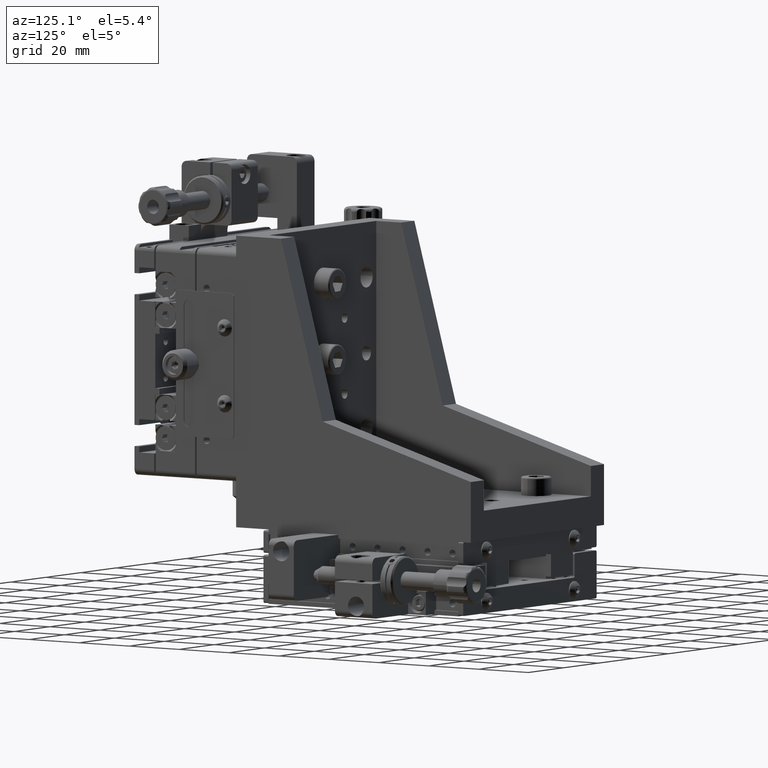
[diagram: clean part render]
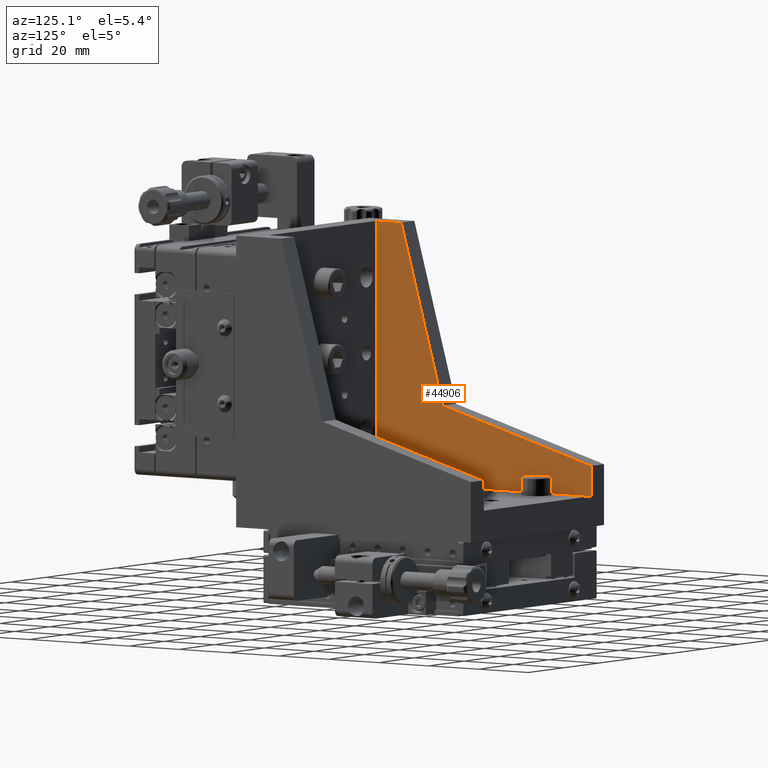
[diagram: same view with one face highlighted and labeled with its STEP entity id]
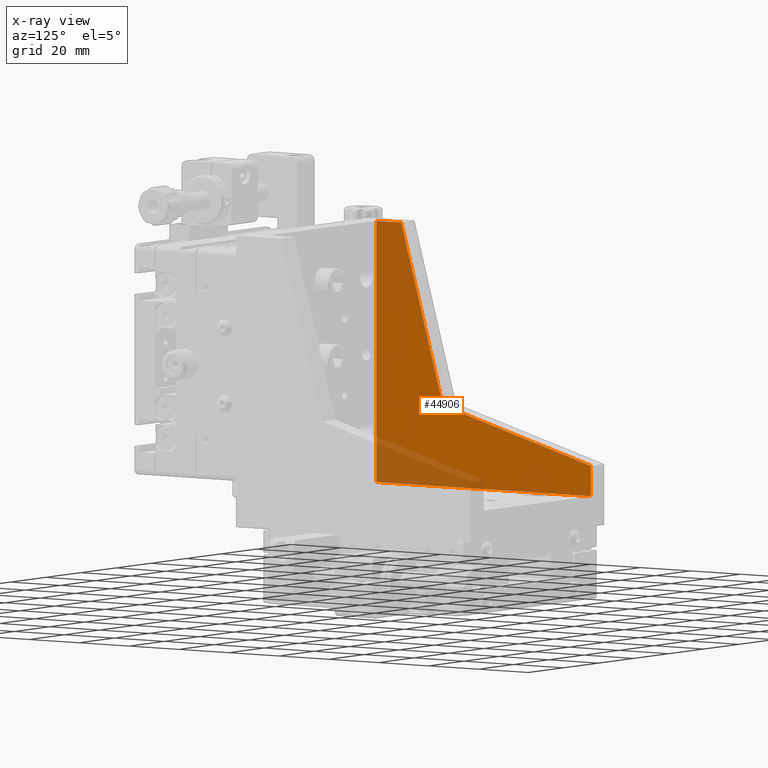
[diagram: x-ray of the same camera — body ghosted, the highlighted face saturated]
A machine part, auxiliary view. The second image highlights one B-rep face of the part: STEP entity #44906.
The next image is the same camera in x-ray: the body ghosted, the highlighted face saturated — about 13% of this face is hidden behind the body in this view.
In plain terms, the highlighted planar face has unit normal (-1, -0, -0).
Its self-contained STEP definition (entity closure, byte-faithful):
#2727 = CARTESIAN_POINT ( 'NONE',  ( -23.88252653792330100, 59.79002752014504600, 176.2309604384503800 ) ) ;
#2950 = EDGE_CURVE ( 'NONE', #106067, #22376, #31684, .T. ) ;
#3089 = EDGE_CURVE ( 'NONE', #106350, #130163, #126029, .T. ) ;
#3470 = EDGE_CURVE ( 'NONE', #3531, #106350, #105493, .T. ) ;
#3531 = VERTEX_POINT ( 'NONE', #72652 ) ;
#3915 = VERTEX_POINT ( 'NONE', #2727 ) ;
#10764 = CARTESIAN_POINT ( 'NONE',  ( -23.88252653792335100, 49.79002752014495300, 90.23096043845028200 ) ) ;
#14644 = CARTESIAN_POINT ( 'NONE',  ( -23.88252653792335100, 49.79002752014506700, 176.2309604384503800 ) ) ;
#19660 = CARTESIAN_POINT ( 'NONE',  ( -23.88252653792330100, 59.79002752014504600, 176.2309604384503800 ) ) ;
#20765 = CARTESIAN_POINT ( 'NONE',  ( -23.88252653792335100, 49.79002752014495300, 90.23096043845028200 ) ) ;
#22376 = VERTEX_POINT ( 'NONE', #14644 ) ;
#25638 = ORIENTED_EDGE ( 'NONE', *, *, #81914, .F. ) ;
#26937 = VECTOR ( 'NONE', #69877, 1000.000000000000000 ) ;
#28538 = EDGE_LOOP ( 'NONE', ( #95313, #34478, #85253, #25638, #110580, #127582 ) ) ;
#30985 = CARTESIAN_POINT ( 'NONE',  ( -23.88252653792335100, 49.79002752014495300, 90.23096043845028200 ) ) ;
#31684 = LINE ( 'NONE', #10764, #26937 ) ;
#32113 = CARTESIAN_POINT ( 'NONE',  ( -23.88252653792330100, 135.7900275201449700, 90.23096043845029600 ) ) ;
#34478 = ORIENTED_EDGE ( 'NONE', *, *, #3089, .F. ) ;
#38892 = DIRECTION ( 'NONE',  ( -7.252141503904997400E-023, 1.000000000000000000, 1.122997703802537200E-016 ) ) ;
#39473 = LINE ( 'NONE', #45277, #99309 ) ;
#44906 = ADVANCED_FACE ( 'NONE', ( #66110 ), #48772, .F. ) ;
#45277 = CARTESIAN_POINT ( 'NONE',  ( -23.88252653792330100, 135.7900275201449700, 90.23096043845029600 ) ) ;
#48772 = PLANE ( 'NONE',  #129710 ) ;
#55936 = CARTESIAN_POINT ( 'NONE',  ( -23.88252653792329400, 135.7900275201449700, 100.2309604384504100 ) ) ;
#57227 = LINE ( 'NONE', #19660, #117043 ) ;
#66110 = FACE_OUTER_BOUND ( 'NONE', #28538, .T. ) ;
#69877 = DIRECTION ( 'NONE',  ( -3.210967867576007900E-018, -1.122997703615274700E-016, 1.000000000000000000 ) ) ;
#72652 = CARTESIAN_POINT ( 'NONE',  ( -23.88252653792330100, 76.46542206237899100, 116.9063549806843100 ) ) ;
#77141 = VECTOR ( 'NONE', #112573, 1000.000000000000000 ) ;
#78671 = VECTOR ( 'NONE', #129936, 1000.000000000000000 ) ;
#78865 = CARTESIAN_POINT ( 'NONE',  ( -23.88252653792330100, 135.7900275201449700, 90.23096043845029600 ) ) ;
#81914 = EDGE_CURVE ( 'NONE', #3915, #3531, #123363, .T. ) ;
#83147 = CARTESIAN_POINT ( 'NONE',  ( -23.88252653792330100, 76.46542206237899100, 116.9063549806843100 ) ) ;
#83374 = EDGE_CURVE ( 'NONE', #22376, #3915, #57227, .T. ) ;
#85253 = ORIENTED_EDGE ( 'NONE', *, *, #3470, .F. ) ;
#95313 = ORIENTED_EDGE ( 'NONE', *, *, #96089, .F. ) ;
#96089 = EDGE_CURVE ( 'NONE', #130163, #106067, #39473, .T. ) ;
#99309 = VECTOR ( 'NONE', #114780, 1000.000000000000000 ) ;
#99775 = VECTOR ( 'NONE', #124049, 1000.000000000000100 ) ;
#100067 = CARTESIAN_POINT ( 'NONE',  ( -23.88252653792329400, 135.7900275201449700, 100.2309604384504100 ) ) ;
#105493 = LINE ( 'NONE', #100067, #78671 ) ;
#106067 = VERTEX_POINT ( 'NONE', #30985 ) ;
#106350 = VERTEX_POINT ( 'NONE', #55936 ) ;
#109911 = DIRECTION ( 'NONE',  ( -3.210967867576008200E-018, -1.122997703615274700E-016, 1.000000000000000000 ) ) ;
#110580 = ORIENTED_EDGE ( 'NONE', *, *, #83374, .F. ) ;
#112573 = DIRECTION ( 'NONE',  ( 3.210967867576007900E-018, 1.122997703615274700E-016, -1.000000000000000000 ) ) ;
#114780 = DIRECTION ( 'NONE',  ( 7.252141503904997400E-023, -1.000000000000000000, -1.122997703802537200E-016 ) ) ;
#117043 = VECTOR ( 'NONE', #38892, 1000.000000000000000 ) ;
#123363 = LINE ( 'NONE', #83147, #99775 ) ;
#124049 = DIRECTION ( 'NONE',  ( 3.091152639828836600E-018, 0.2706004459758642500, -0.9626917464264784800 ) ) ;
#126029 = LINE ( 'NONE', #32113, #77141 ) ;
#127582 = ORIENTED_EDGE ( 'NONE', *, *, #2950, .F. ) ;
#129710 = AXIS2_PLACEMENT_3D ( 'NONE', #20765, #130125, #109911 ) ;
#129936 = DIRECTION ( 'NONE',  ( 8.688195212125882500E-019, 0.9626917464264784800, -0.2706004459758645200 ) ) ;
#130125 = DIRECTION ( 'NONE',  ( -1.000000000000000000, -7.254406497479722000E-023, -3.210967867576008200E-018 ) ) ;
#130163 = VERTEX_POINT ( 'NONE', #78865 ) ;